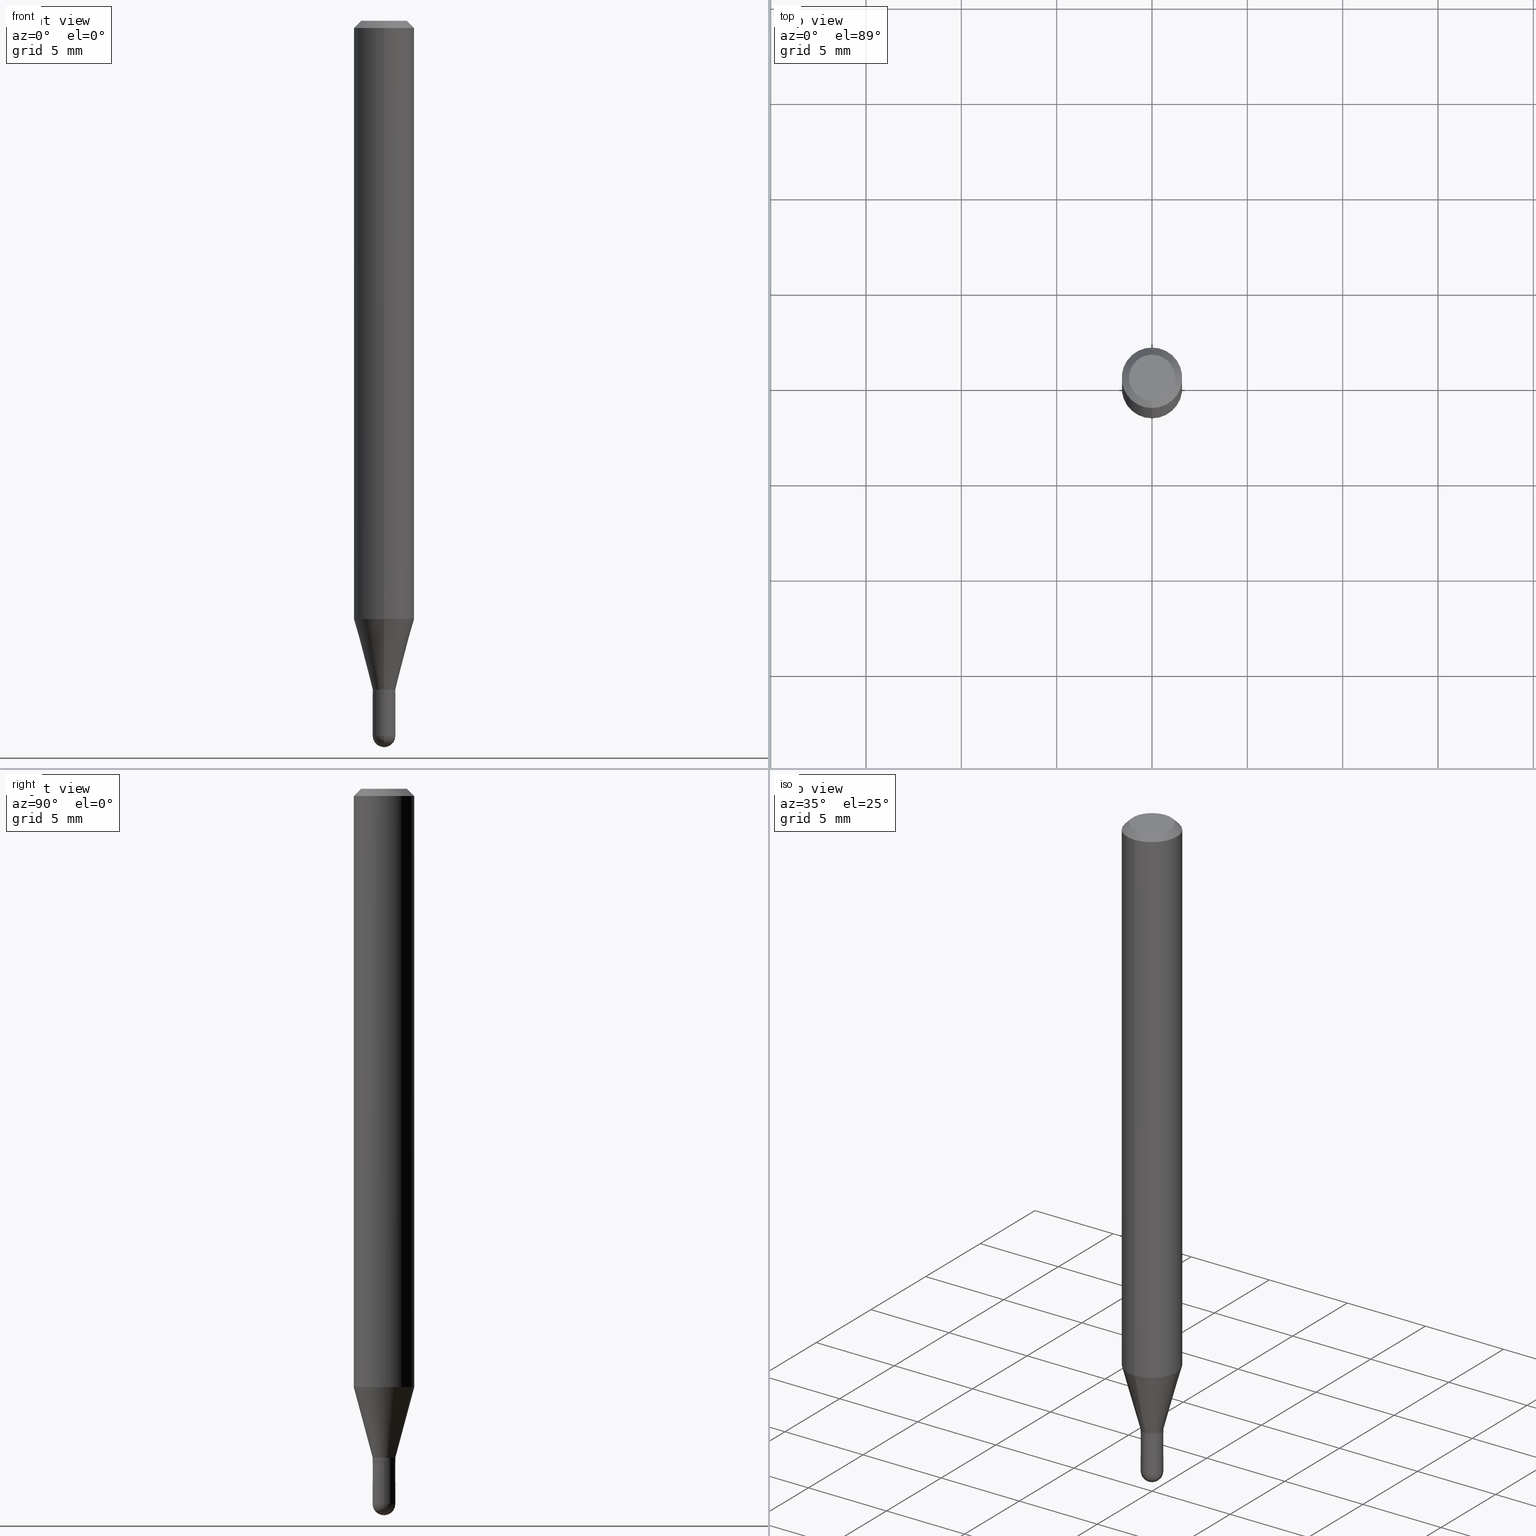
[diagram: canonical four-view strip — front | top / right | iso, engineering-drawing reading convention]
A machine part, canonical four-view strip (front | top / right | iso — engineering-drawing reading convention). The complete STEP part file that produces these views, byte-faithful:
ISO-10303-21;
HEADER;
FILE_DESCRIPTION (( 'STEP AP203' ),
    '1' );
FILE_NAME ('39106.STEP',
    '2024-03-08T12:44:34',
    ( '' ),
    ( '' ),
    'SwSTEP 2.0',
    'SolidWorks 2023',
    '' );
FILE_SCHEMA (( 'CONFIG_CONTROL_DESIGN' ));
ENDSEC;

DATA;
#1 = CALENDAR_DATE ( 2024, 8, 3 ) ;
#2 = CARTESIAN_POINT ( 'NONE',  ( 1.666222715357429168E-16, 0.02344999999999992230, -8.187880512536303078E-17 ) ) ;
#3 = ORIENTED_EDGE ( 'NONE', *, *, #386, .F. ) ;
#4 = APPROVAL_DATE_TIME ( #46, #284 ) ;
#5 = FACE_OUTER_BOUND ( 'NONE', #316, .T. ) ;
#6 = VECTOR ( 'NONE', #283, 39.37007874015748143 ) ;
#7 = VERTEX_POINT ( 'NONE', #106 ) ;
#8 = CARTESIAN_POINT ( 'NONE',  ( 0.000000000000000000, 0.000000000000000000, 0.000000000000000000 ) ) ;
#9 = APPROVAL_PERSON_ORGANIZATION ( #126, #284, #84 ) ;
#10 = DIRECTION ( 'NONE',  ( -2.445362566006528973E-29, 3.491633480825727200E-15, 1.000000000000000000 ) ) ;
#11 = ORIENTED_EDGE ( 'NONE', *, *, #130, .T. ) ;
#12 = DIRECTION ( 'NONE',  ( -2.445362566006528973E-29, 3.491633480825727200E-15, 1.000000000000000000 ) ) ;
#13 = ORIENTED_EDGE ( 'NONE', *, *, #465, .T. ) ;
#14 = CARTESIAN_POINT ( 'NONE',  ( 1.637504747917769708E-16, 0.02344999999999514140, -1.391000000000000014 ) ) ;
#15 = ORIENTED_EDGE ( 'NONE', *, *, #275, .T. ) ;
#16 = MANIFOLD_SOLID_BREP ( 'Body-Move/Copy2[2]', #214 ) ;
#17 = VECTOR ( 'NONE', #174, 39.37007874015748143 ) ;
#18 = CIRCLE ( 'NONE', #77, 0.02345000000000000556 ) ;
#19 = EDGE_CURVE ( 'NONE', #407, #251, #450, .T. ) ;
#20 = DIRECTION ( 'NONE',  ( -2.445468806185136597E-29, 3.491481338843145583E-15, 1.000000000000000000 ) ) ;
#21 = ORIENTED_EDGE ( 'NONE', *, *, #206, .F. ) ;
#22 = DIRECTION ( 'NONE',  ( -2.445362566006528973E-29, 3.491633480825727200E-15, 1.000000000000000000 ) ) ;
#23 = FACE_OUTER_BOUND ( 'NONE', #376, .T. ) ;
#24 = DIRECTION ( 'NONE',  ( -6.982962677686265922E-15, -1.000000000000000000, 0.000000000000000000 ) ) ;
#25 = CONICAL_SURFACE ( 'NONE', #421, 0.02345000000000019638, 0.2617993877991502960 ) ;
#26 = FACE_OUTER_BOUND ( 'NONE', #218, .T. ) ;
#27 = AXIS2_PLACEMENT_3D ( 'NONE', #229, #226, #380 ) ;
#28 = DIRECTION ( 'NONE',  ( -2.445468806185136597E-29, 3.491481338843145583E-15, 1.000000000000000000 ) ) ;
#29 = ORIENTED_EDGE ( 'NONE', *, *, #328, .F. ) ;
#30 = DIRECTION ( 'NONE',  ( 1.000000000000000000, -6.982962677686254089E-15, 0.000000000000000000 ) ) ;
#31 = ORIENTED_EDGE ( 'NONE', *, *, #354, .F. ) ;
#32 = ORIENTED_EDGE ( 'NONE', *, *, #328, .T. ) ;
#33 = AXIS2_PLACEMENT_3D ( 'NONE', #58, #333, #185 ) ;
#34 = DIRECTION ( 'NONE',  ( -2.445362566006528973E-29, 3.491633480825727200E-15, 1.000000000000000000 ) ) ;
#35 = VERTEX_POINT ( 'NONE', #408 ) ;
#36 = PERSON_AND_ORGANIZATION ( #353, #279 ) ;
#37 = ADVANCED_FACE ( 'NONE', ( #103 ), #48, .T. ) ;
#38 = DATE_TIME_ROLE ( 'classification_date' ) ;
#39 = CARTESIAN_POINT ( 'NONE',  ( 0.000000000000000000, 0.000000000000000000, 0.000000000000000000 ) ) ;
#40 = AXIS2_PLACEMENT_3D ( 'NONE', #63, #66, #264 ) ;
#41 = ADVANCED_FACE ( 'NONE', ( #65 ), #25, .T. ) ;
#42 = LINE ( 'NONE', #431, #256 ) ;
#43 = CALENDAR_DATE ( 2024, 8, 3 ) ;
#44 = DIRECTION ( 'NONE',  ( 2.445362566006528693E-29, -3.491633480825727200E-15, -1.000000000000000000 ) ) ;
#45 = ORIENTED_EDGE ( 'NONE', *, *, #499, .F. ) ;
#46 = DATE_AND_TIME ( #43, #225 ) ;
#47 = CARTESIAN_POINT ( 'NONE',  ( 0.000000000000000000, 0.000000000000000000, 0.000000000000000000 ) ) ;
#48 = CONICAL_SURFACE ( 'NONE', #246, 0.06250000000000001388, 0.7853981633974473908 ) ;
#49 = AXIS2_PLACEMENT_3D ( 'NONE', #323, #454, #219 ) ;
#50 = EDGE_LOOP ( 'NONE', ( #136, #280 ) ) ;
#51 = APPROVAL_PERSON_ORGANIZATION ( #243, #476, #399 ) ;
#52 = CARTESIAN_POINT ( 'NONE',  ( 1.648459146963756983E-16, 0.02294999999999514095, -1.391000000000000236 ) ) ;
#53 = EDGE_CURVE ( 'NONE', #369, #436, #452, .T. ) ;
#54 = ORIENTED_EDGE ( 'NONE', *, *, #372, .F. ) ;
#55 = DIRECTION ( 'NONE',  ( -1.000000000000000000, 6.982962677686265922E-15, -4.876176775795935793E-29 ) ) ;
#56 = ADVANCED_FACE ( 'NONE', ( #113 ), #164, .T. ) ;
#57 = ORIENTED_EDGE ( 'NONE', *, *, #372, .T. ) ;
#58 = CARTESIAN_POINT ( 'NONE',  ( 3.401499329315081448E-29, -4.856862171828586878E-15, -1.391000000000000014 ) ) ;
#59 = VERTEX_POINT ( 'NONE', #217 ) ;
#60 = DIRECTION ( 'NONE',  ( -6.982962677686265922E-15, -1.000000000000000000, 0.000000000000000000 ) ) ;
#61 = AXIS2_PLACEMENT_3D ( 'NONE', #210, #286, #356 ) ;
#62 = AXIS2_PLACEMENT_3D ( 'NONE', #117, #455, #72 ) ;
#63 = CARTESIAN_POINT ( 'NONE',  ( 3.020666916556785536E-29, -4.313087100820585509E-15, -1.235263415964436895 ) ) ;
#64 = VERTEX_POINT ( 'NONE', #400 ) ;
#65 = FACE_OUTER_BOUND ( 'NONE', #489, .T. ) ;
#66 = DIRECTION ( 'NONE',  ( -2.445362566006528973E-29, 3.491633480825727200E-15, 1.000000000000000000 ) ) ;
#67 = EDGE_CURVE ( 'NONE', #120, #429, #170, .T. ) ;
#68 = CARTESIAN_POINT ( 'NONE',  ( 0.000000000000000000, 0.000000000000000000, 0.000000000000000000 ) ) ;
#69 = EDGE_CURVE ( 'NONE', #7, #211, #236, .T. ) ;
#70 = DIRECTION ( 'NONE',  ( 1.000000000000000000, -6.982962677686254089E-15, 0.000000000000000000 ) ) ;
#71 = AXIS2_PLACEMENT_3D ( 'NONE', #267, #188, #419 ) ;
#72 = DIRECTION ( 'NONE',  ( -6.982962677686265922E-15, -1.000000000000000000, 0.000000000000000000 ) ) ;
#73 = EDGE_CURVE ( 'NONE', #436, #407, #440, .T. ) ;
#74 = CARTESIAN_POINT ( 'NONE',  ( 4.440892098500924943E-16, 0.06249999999999566319, -1.235263415964437339 ) ) ;
#75 = DIRECTION ( 'NONE',  ( -4.937700262161976356E-15, -0.7071067811861768693, 0.7071067811869181652 ) ) ;
#76 = EDGE_LOOP ( 'NONE', ( #153, #167, #216, #99, #172 ) ) ;
#77 = AXIS2_PLACEMENT_3D ( 'NONE', #385, #28, #70 ) ;
#78 = CC_DESIGN_APPROVAL ( #382, ( #304 ) ) ;
#79 = DIRECTION ( 'NONE',  ( -2.445362566006528973E-29, 3.491633480825727200E-15, 1.000000000000000000 ) ) ;
#80 = ORIENTED_EDGE ( 'NONE', *, *, #291, .F. ) ;
#81 = PERSON_AND_ORGANIZATION ( #353, #279 ) ;
#82 = LINE ( 'NONE', #473, #486 ) ;
#83 = PRODUCT_RELATED_PRODUCT_CATEGORY ( 'detail', '', ( #260 ) ) ;
#84 = APPROVAL_ROLE ( '' ) ;
#85 = DIRECTION ( 'NONE',  ( -2.445362566006528973E-29, 3.491633480825727200E-15, 1.000000000000000000 ) ) ;
#86 = AXIS2_PLACEMENT_3D ( 'NONE', #308, #79, #269 ) ;
#87 = DIRECTION ( 'NONE',  ( 0.000000000000000000, 0.000000000000000000, 1.000000000000000000 ) ) ;
#88 = CARTESIAN_POINT ( 'NONE',  ( 3.316907271900979054E-16, 0.04750000000000004219, -3.448923390024789188E-16 ) ) ;
#89 = VERTEX_POINT ( 'NONE', #331 ) ;
#90 = APPROVAL_ROLE ( '' ) ;
#91 = DIRECTION ( 'NONE',  ( -2.445468806185136597E-29, 3.491481338843145583E-15, 1.000000000000000000 ) ) ;
#92 = COORDINATED_UNIVERSAL_TIME_OFFSET ( 5, 0, .BEHIND. ) ;
#93 = EDGE_CURVE ( 'NONE', #59, #379, #254, .T. ) ;
#94 = DIRECTION ( 'NONE',  ( -4.851104656540959542E-15, -0.7071067811865493491, -0.7071067811865456854 ) ) ;
#95 = VECTOR ( 'NONE', #75, 39.37007874015748143 ) ;
#96 = EDGE_LOOP ( 'NONE', ( #133, #459, #258, #123 ) ) ;
#97 = APPROVAL_PERSON_ORGANIZATION ( #124, #382, #90 ) ;
#98 = CYLINDRICAL_SURFACE ( 'NONE', #487, 0.02344999999999992230 ) ;
#99 = ORIENTED_EDGE ( 'NONE', *, *, #130, .F. ) ;
#100 = DIRECTION ( 'NONE',  ( -2.445362566006528973E-29, 3.491633480825727200E-15, 1.000000000000000000 ) ) ;
#101 = DIRECTION ( 'NONE',  ( 1.000000000000000000, -6.982962677686266711E-15, 4.876176775795936353E-29 ) ) ;
#102 = VERTEX_POINT ( 'NONE', #394 ) ;
#103 = FACE_OUTER_BOUND ( 'NONE', #493, .T. ) ;
#104 = FACE_OUTER_BOUND ( 'NONE', #227, .T. ) ;
#105 = ORIENTED_EDGE ( 'NONE', *, *, #146, .T. ) ;
#106 = CARTESIAN_POINT ( 'NONE',  ( 1.666222715357800672E-16, 0.02344999999999491241, -1.476549999999999807 ) ) ;
#107 = CLOSED_SHELL ( 'NONE', ( #233, #448, #305, #492, #189 ) ) ;
#108 = AXIS2_PLACEMENT_3D ( 'NONE', #235, #199, #388 ) ;
#109 = CARTESIAN_POINT ( 'NONE',  ( -1.637504747917105586E-16, -0.02345000000000501891, -1.381000000000000449 ) ) ;
#110 = CARTESIAN_POINT ( 'NONE',  ( 3.401499329315082009E-29, -4.856862171828588456E-15, -1.391000000000000236 ) ) ;
#111 = APPLICATION_CONTEXT ( 'configuration controlled 3d designs of mechanical parts and assemblies' ) ;
#112 = DIRECTION ( 'NONE',  ( -6.982962677686265922E-15, -1.000000000000000000, 0.000000000000000000 ) ) ;
#113 = FACE_OUTER_BOUND ( 'NONE', #186, .T. ) ;
#114 = DIRECTION ( 'NONE',  ( -6.982962677686265133E-15, -1.000000000000000000, 3.491633480825726805E-15 ) ) ;
#115 = CIRCLE ( 'NONE', #231, 0.02344999999999999862 ) ;
#116 = EDGE_CURVE ( 'NONE', #120, #296, #403, .T. ) ;
#117 = CARTESIAN_POINT ( 'NONE',  ( 3.377045703655016887E-29, -4.821945837020329725E-15, -1.381000000000000449 ) ) ;
#118 = ORIENTED_EDGE ( 'NONE', *, *, #270, .F. ) ;
#119 =( NAMED_UNIT ( * ) PLANE_ANGLE_UNIT ( ) SI_UNIT ( $, .RADIAN. ) );
#120 = VERTEX_POINT ( 'NONE', #52 ) ;
#121 = EDGE_CURVE ( 'NONE', #441, #379, #82, .T. ) ;
#122 = VECTOR ( 'NONE', #373, 39.37007874015748143 ) ;
#123 = ORIENTED_EDGE ( 'NONE', *, *, #507, .F. ) ;
#124 = PERSON_AND_ORGANIZATION ( #353, #279 ) ;
#125 = CARTESIAN_POINT ( 'NONE',  ( -1.637504747917070334E-16, -0.02345000000000458523, -1.390500000000000069 ) ) ;
#126 = PERSON_AND_ORGANIZATION ( #353, #279 ) ;
#127 = LINE ( 'NONE', #364, #6 ) ;
#128 = PERSON_AND_ORGANIZATION ( #353, #279 ) ;
#129 = CARTESIAN_POINT ( 'NONE',  ( -0.02344999999999999862, -4.839376385064087079E-15, -1.391000000000000014 ) ) ;
#130 = EDGE_CURVE ( 'NONE', #277, #35, #127, .T. ) ;
#131 = PERSON_AND_ORGANIZATION_ROLE ( 'design_owner' ) ;
#132 = DIRECTION ( 'NONE',  ( -2.445362566006528973E-29, 3.491633480825727200E-15, 1.000000000000000000 ) ) ;
#133 = ORIENTED_EDGE ( 'NONE', *, *, #53, .T. ) ;
#134 = DATE_AND_TIME ( #285, #470 ) ;
#135 = CYLINDRICAL_SURFACE ( 'NONE', #271, 0.06250000000000001388 ) ;
#136 = ORIENTED_EDGE ( 'NONE', *, *, #456, .T. ) ;
#137 = CARTESIAN_POINT ( 'NONE',  ( 4.364351673553921131E-16, 0.06249999999999996531, -0.01500000000000057711 ) ) ;
#138 = VECTOR ( 'NONE', #491, 39.37007874015748143 ) ;
#139 = VERTEX_POINT ( 'NONE', #129 ) ;
#140 = DIRECTION ( 'NONE',  ( 6.982962677686265922E-15, 1.000000000000000000, -3.483106191921934765E-15 ) ) ;
#141 = DIRECTION ( 'NONE',  ( 2.445362566006528973E-29, -3.491633480825727200E-15, -1.000000000000000000 ) ) ;
#142 = ADVANCED_FACE ( 'NONE', ( #5 ), #250, .F. ) ;
#143 = CARTESIAN_POINT ( 'NONE',  ( 4.440892098500930859E-16, 0.06249999999999996531, -0.01500000000000057711 ) ) ;
#144 = ORIENTED_EDGE ( 'NONE', *, *, #159, .F. ) ;
#145 = DIRECTION ( 'NONE',  ( -2.445468806185136597E-29, 3.491481338843145583E-15, 1.000000000000000000 ) ) ;
#146 = EDGE_CURVE ( 'NONE', #296, #178, #363, .T. ) ;
#147 = AXIS2_PLACEMENT_3D ( 'NONE', #326, #398, #208 ) ;
#148 = AXIS2_PLACEMENT_3D ( 'NONE', #193, #428, #112 ) ;
#149 = CARTESIAN_POINT ( 'NONE',  ( 1.666222715357744219E-16, 0.02344999999999471466, -1.390500000000000069 ) ) ;
#150 =( NAMED_UNIT ( * ) SI_UNIT ( $, .STERADIAN. ) SOLID_ANGLE_UNIT ( ) );
#151 = CARTESIAN_POINT ( 'NONE',  ( 3.020666916556785536E-29, -4.313087100820585509E-15, -1.235263415964436895 ) ) ;
#152 = EDGE_LOOP ( 'NONE', ( #144, #329, #3, #318 ) ) ;
#153 = ORIENTED_EDGE ( 'NONE', *, *, #69, .T. ) ;
#154 = CARTESIAN_POINT ( 'NONE',  ( -4.364351673553615941E-16, -0.06250000000000432987, -1.235263415964436673 ) ) ;
#155 = CIRCLE ( 'NONE', #223, 0.02345000000000000556 ) ;
#156 = ADVANCED_FACE ( 'NONE', ( #368 ), #135, .T. ) ;
#157 = ORIENTED_EDGE ( 'NONE', *, *, #73, .F. ) ;
#158 = ORIENTED_EDGE ( 'NONE', *, *, #366, .F. ) ;
#159 = EDGE_CURVE ( 'NONE', #89, #7, #468, .T. ) ;
#160 = ORIENTED_EDGE ( 'NONE', *, *, #458, .T. ) ;
#161 = EDGE_CURVE ( 'NONE', #211, #139, #42, .T. ) ;
#162 = DATE_AND_TIME ( #438, #295 ) ;
#163 = CIRCLE ( 'NONE', #40, 0.06250000000000000000 ) ;
#164 = CYLINDRICAL_SURFACE ( 'NONE', #222, 0.02344999999999992230 ) ;
#165 = PERSON_AND_ORGANIZATION_ROLE ( 'classification_officer' ) ;
#166 = DIRECTION ( 'NONE',  ( -2.445362566006528973E-29, 3.491633480825727200E-15, 1.000000000000000000 ) ) ;
#167 = ORIENTED_EDGE ( 'NONE', *, *, #161, .T. ) ;
#168 = APPROVAL_STATUS ( 'not_yet_approved' ) ;
#169 = DIRECTION ( 'NONE',  ( -6.982962677686265133E-15, -1.000000000000000000, 0.000000000000000000 ) ) ;
#170 = CIRCLE ( 'NONE', #61, 0.02294999999999999818 ) ;
#171 = CC_DESIGN_APPROVAL ( #284, ( #240 ) ) ;
#172 = ORIENTED_EDGE ( 'NONE', *, *, #499, .T. ) ;
#173 = APPROVAL_STATUS ( 'not_yet_approved' ) ;
#174 = DIRECTION ( 'NONE',  ( 1.839019923739600710E-15, 0.2588190451025250138, 0.9659258262890670910 ) ) ;
#175 = ADVANCED_FACE ( 'NONE', ( #475 ), #347, .T. ) ;
#176 = ORIENTED_EDGE ( 'NONE', *, *, #433, .T. ) ;
#177 = DIRECTION ( 'NONE',  ( 6.982962677686265922E-15, 1.000000000000000000, -3.491633480825727200E-15 ) ) ;
#178 = VERTEX_POINT ( 'NONE', #125 ) ;
#179 = DIRECTION ( 'NONE',  ( 2.445362566006528973E-29, -3.491633480825727200E-15, -1.000000000000000000 ) ) ;
#180 = CC_DESIGN_PERSON_AND_ORGANIZATION_ASSIGNMENT ( #81, #203, ( #240 ) ) ;
#181 = FACE_OUTER_BOUND ( 'NONE', #50, .T. ) ;
#182 = PRODUCT_DEFINITION_SHAPE ( 'NONE', 'NONE',  #255 ) ;
#183 = AXIS2_PLACEMENT_3D ( 'NONE', #244, #471, #357 ) ;
#184 = AXIS2_PLACEMENT_3D ( 'NONE', #110, #299, #24 ) ;
#185 = DIRECTION ( 'NONE',  ( -6.982962677686265922E-15, -1.000000000000000000, 3.491633480825727200E-15 ) ) ;
#186 = EDGE_LOOP ( 'NONE', ( #445, #105, #464, #443 ) ) ;
#187 = PLANE ( 'NONE',  #33 ) ;
#188 = DIRECTION ( 'NONE',  ( -1.000000000000000000, 6.982962677686265922E-15, -4.883557194083112340E-29 ) ) ;
#189 = ADVANCED_FACE ( 'NONE', ( #252 ), #213, .T. ) ;
#190 = AXIS2_PLACEMENT_3D ( 'NONE', #435, #360, #169 ) ;
#191 = AXIS2_PLACEMENT_3D ( 'NONE', #14, #261, #55 ) ;
#192 = EDGE_CURVE ( 'NONE', #296, #436, #282, .T. ) ;
#193 = CARTESIAN_POINT ( 'NONE',  ( 3.401499329315082009E-29, -4.856862171828588456E-15, -1.391000000000000236 ) ) ;
#194 = EDGE_LOOP ( 'NONE', ( #508, #462, #80, #273 ) ) ;
#195 = CC_DESIGN_PERSON_AND_ORGANIZATION_ASSIGNMENT ( #36, #165, ( #304 ) ) ;
#196 = LINE ( 'NONE', #313, #469 ) ;
#197 = DIRECTION ( 'NONE',  ( -6.982962677686265922E-15, -1.000000000000000000, 0.000000000000000000 ) ) ;
#198 = LOCAL_TIME ( 7, 44, 34.00000000000000000, #362 ) ;
#199 = DIRECTION ( 'NONE',  ( -2.445362566006528973E-29, 3.491633480825727200E-15, 1.000000000000000000 ) ) ;
#200 = ORIENTED_EDGE ( 'NONE', *, *, #507, .T. ) ;
#201 = ADVANCED_BREP_SHAPE_REPRESENTATION ( '39106', ( #358, #16, #287 ), #415 ) ;
#202 = SHAPE_DEFINITION_REPRESENTATION ( #182, #201 ) ;
#203 = PERSON_AND_ORGANIZATION_ROLE ( 'design_supplier' ) ;
#204 = DIRECTION ( 'NONE',  ( -6.982962677686266711E-15, -1.000000000000000000, 3.491633480825727200E-15 ) ) ;
#205 = CIRCLE ( 'NONE', #49, 0.06250000000000001388 ) ;
#206 = EDGE_CURVE ( 'NONE', #251, #379, #205, .T. ) ;
#207 = MECHANICAL_CONTEXT ( 'NONE', #111, 'mechanical' ) ;
#208 = DIRECTION ( 'NONE',  ( 7.105427357601001070E-15, 1.000000000000000000, 0.000000000000000000 ) ) ;
#209 = APPLICATION_PROTOCOL_DEFINITION ( 'international standard', 'config_control_design', 1994, #111 ) ;
#210 = CARTESIAN_POINT ( 'NONE',  ( 3.401499329315082009E-29, -4.856862171828588456E-15, -1.391000000000000236 ) ) ;
#211 = VERTEX_POINT ( 'NONE', #442 ) ;
#212 = DIRECTION ( 'NONE',  ( 1.000000000000000000, 0.000000000000000000, 0.000000000000000000 ) ) ;
#213 = CYLINDRICAL_SURFACE ( 'NONE', #183, 0.02344999999999999862 ) ;
#214 = CLOSED_SHELL ( 'NONE', ( #239, #175, #37, #156, #417, #41, #215, #343, #142, #352, #392, #56 ) ) ;
#215 = ADVANCED_FACE ( 'NONE', ( #104 ), #341, .T. ) ;
#216 = ORIENTED_EDGE ( 'NONE', *, *, #456, .F. ) ;
#217 = CARTESIAN_POINT ( 'NONE',  ( -3.773273898774342241E-16, -0.04750000000000004219, -1.922269069872913270E-16 ) ) ;
#218 = EDGE_LOOP ( 'NONE', ( #361, #483 ) ) ;
#219 = DIRECTION ( 'NONE',  ( -6.982962677686265922E-15, -1.000000000000000000, 3.483106191921934765E-15 ) ) ;
#220 = ORIENTED_EDGE ( 'NONE', *, *, #291, .T. ) ;
#221 = LINE ( 'NONE', #137, #122 ) ;
#222 = AXIS2_PLACEMENT_3D ( 'NONE', #39, #12, #204 ) ;
#223 = AXIS2_PLACEMENT_3D ( 'NONE', #350, #503, #30 ) ;
#224 = ORIENTED_EDGE ( 'NONE', *, *, #354, .T. ) ;
#225 = LOCAL_TIME ( 7, 44, 34.00000000000000000, #253 ) ;
#226 = DIRECTION ( 'NONE',  ( -2.445362566006528973E-29, 3.491633480825727200E-15, 1.000000000000000000 ) ) ;
#227 = EDGE_LOOP ( 'NONE', ( #332, #367, #351, #21 ) ) ;
#228 = DIRECTION ( 'NONE',  ( -6.982962677686265922E-15, -1.000000000000000000, 0.000000000000000000 ) ) ;
#229 = CARTESIAN_POINT ( 'NONE',  ( 0.000000000000000000, 0.000000000000000000, 0.000000000000000000 ) ) ;
#230 = CARTESIAN_POINT ( 'NONE',  ( 3.400276648032079005E-29, -4.855116355088173902E-15, -1.390500000000000069 ) ) ;
#231 = AXIS2_PLACEMENT_3D ( 'NONE', #292, #20, #338 ) ;
#232 = DIRECTION ( 'NONE',  ( 1.000000000000000000, -6.982962677686265922E-15, 4.883557194083112901E-29 ) ) ;
#233 = ADVANCED_FACE ( 'NONE', ( #411 ), #447, .T. ) ;
#234 = CARTESIAN_POINT ( 'NONE',  ( 8.756341984166910779E-45, -1.250282361662500984E-30, -3.580794973265134972E-16 ) ) ;
#235 = CARTESIAN_POINT ( 'NONE',  ( 3.668043849009881216E-31, -5.237450221238716032E-17, -0.01500000000000035853 ) ) ;
#236 = CIRCLE ( 'NONE', #497, 0.02345000000000000556 ) ;
#237 =( LENGTH_UNIT ( ) NAMED_UNIT ( * ) SI_UNIT ( $, .METRE. ) );
#238 = AXIS2_PLACEMENT_3D ( 'NONE', #387, #463, #197 ) ;
#239 = ADVANCED_FACE ( 'NONE', ( #259 ), #98, .T. ) ;
#240 = PRODUCT_DEFINITION_FORMATION_WITH_SPECIFIED_SOURCE ( 'ANY', '', #260, .NOT_KNOWN. ) ;
#241 = EDGE_LOOP ( 'NONE', ( #15, #477, #262, #502 ) ) ;
#242 = DIRECTION ( 'NONE',  ( -2.445362566006528973E-29, 3.491633480825727200E-15, 1.000000000000000000 ) ) ;
#243 = PERSON_AND_ORGANIZATION ( #353, #279 ) ;
#244 = CARTESIAN_POINT ( 'NONE',  ( 0.000000000000000000, 0.000000000000000000, 0.000000000000000000 ) ) ;
#245 = SECURITY_CLASSIFICATION_LEVEL ( 'unclassified' ) ;
#246 = AXIS2_PLACEMENT_3D ( 'NONE', #263, #179, #140 ) ;
#247 = DIRECTION ( 'NONE',  ( -6.982962677686265133E-15, -1.000000000000000000, 3.491633480825726805E-15 ) ) ;
#248 = CIRCLE ( 'NONE', #511, 0.02345000000000000556 ) ;
#249 = CC_DESIGN_PERSON_AND_ORGANIZATION_ASSIGNMENT ( #474, #402, ( #255 ) ) ;
#250 = PLANE ( 'NONE',  #302 ) ;
#251 = VERTEX_POINT ( 'NONE', #143 ) ;
#252 = FACE_OUTER_BOUND ( 'NONE', #426, .T. ) ;
#253 = COORDINATED_UNIVERSAL_TIME_OFFSET ( 5, 0, .BEHIND. ) ;
#254 = LINE ( 'NONE', #512, #319 ) ;
#255 = PRODUCT_DEFINITION ( 'UNKNOWN', '', #240, #339 ) ;
#256 = VECTOR ( 'NONE', #290, 39.37007874015748143 ) ;
#257 = CC_DESIGN_APPROVAL ( #476, ( #255 ) ) ;
#258 = ORIENTED_EDGE ( 'NONE', *, *, #275, .F. ) ;
#259 = FACE_OUTER_BOUND ( 'NONE', #371, .T. ) ;
#260 = PRODUCT ( '39106', '39106', '', ( #207 ) ) ;
#261 = DIRECTION ( 'NONE',  ( 2.438088387897960049E-29, -3.491481338843145188E-15, -1.000000000000000000 ) ) ;
#262 = ORIENTED_EDGE ( 'NONE', *, *, #465, .F. ) ;
#263 = CARTESIAN_POINT ( 'NONE',  ( 3.668043849009881216E-31, -5.237450221238716032E-17, -0.01500000000000035853 ) ) ;
#264 = DIRECTION ( 'NONE',  ( -6.982962677686265922E-15, -1.000000000000000000, 4.370956789862821150E-15 ) ) ;
#265 = ORIENTED_EDGE ( 'NONE', *, *, #53, .F. ) ;
#266 = CARTESIAN_POINT ( 'NONE',  ( 8.756341984166910779E-45, -1.250282361662500984E-30, -3.580794973265134972E-16 ) ) ;
#267 = CARTESIAN_POINT ( 'NONE',  ( 3.608851600824538277E-29, -5.158218567612847628E-15, -1.476550000000000029 ) ) ;
#268 = EDGE_CURVE ( 'NONE', #429, #120, #278, .T. ) ;
#269 = DIRECTION ( 'NONE',  ( -6.982962677686265922E-15, -1.000000000000000000, 0.000000000000000000 ) ) ;
#270 = EDGE_CURVE ( 'NONE', #89, #102, #272, .T. ) ;
#271 = AXIS2_PLACEMENT_3D ( 'NONE', #47, #85, #247 ) ;
#272 = CIRCLE ( 'NONE', #71, 0.02345000000000013740 ) ;
#273 = ORIENTED_EDGE ( 'NONE', *, *, #433, .F. ) ;
#274 = FACE_OUTER_BOUND ( 'NONE', #96, .T. ) ;
#275 = EDGE_CURVE ( 'NONE', #441, #407, #163, .T. ) ;
#276 = DIRECTION ( 'NONE',  ( 1.000000000000000000, -6.982962677686256455E-15, 0.000000000000000000 ) ) ;
#277 = VERTEX_POINT ( 'NONE', #340 ) ;
#278 = CIRCLE ( 'NONE', #184, 0.02294999999999999818 ) ;
#279 = ORGANIZATION ( 'UNSPECIFIED', 'UNSPECIFIED', '' ) ;
#280 = ORIENTED_EDGE ( 'NONE', *, *, #366, .T. ) ;
#281 = DIMENSIONAL_EXPONENTS ( 1.000000000000000000, 0.000000000000000000, 0.000000000000000000, 0.000000000000000000, 0.000000000000000000, 0.000000000000000000, 0.000000000000000000 ) ;
#282 = LINE ( 'NONE', #2, #311 ) ;
#283 = DIRECTION ( 'NONE',  ( -2.445468806185136877E-29, 3.491481338843145188E-15, 1.000000000000000000 ) ) ;
#284 = APPROVAL ( #289, 'UNSPECIFIED' ) ;
#285 = CALENDAR_DATE ( 2024, 8, 3 ) ;
#286 = DIRECTION ( 'NONE',  ( -2.445362566006528973E-29, 3.491633480825727200E-15, 1.000000000000000000 ) ) ;
#287 = AXIS2_PLACEMENT_3D ( 'NONE', #8, #87, #212 ) ;
#288 = DIRECTION ( 'NONE',  ( -6.982962677686265922E-15, -1.000000000000000000, 0.000000000000000000 ) ) ;
#289 = APPROVAL_STATUS ( 'not_yet_approved' ) ;
#290 = DIRECTION ( 'NONE',  ( -2.445468806185136877E-29, 3.491481338843145188E-15, 1.000000000000000000 ) ) ;
#291 = EDGE_CURVE ( 'NONE', #178, #296, #342, .T. ) ;
#292 = CARTESIAN_POINT ( 'NONE',  ( 3.401647109403525181E-29, -4.856650542330816199E-15, -1.391000000000000014 ) ) ;
#293 = VECTOR ( 'NONE', #405, 39.37007874015748143 ) ;
#294 = AXIS2_PLACEMENT_3D ( 'NONE', #234, #34, #114 ) ;
#295 = LOCAL_TIME ( 7, 44, 34.00000000000000000, #434 ) ;
#296 = VERTEX_POINT ( 'NONE', #149 ) ;
#297 = DIRECTION ( 'NONE',  ( 6.982962677686265922E-15, 1.000000000000000000, -3.483106191921934765E-15 ) ) ;
#298 = ORIENTED_EDGE ( 'NONE', *, *, #116, .F. ) ;
#299 = DIRECTION ( 'NONE',  ( -2.445362566006528973E-29, 3.491633480825727200E-15, 1.000000000000000000 ) ) ;
#300 = ORIENTED_EDGE ( 'NONE', *, *, #439, .F. ) ;
#301 = DIRECTION ( 'NONE',  ( 1.000000000000000000, -6.982962677686254089E-15, 0.000000000000000000 ) ) ;
#302 = AXIS2_PLACEMENT_3D ( 'NONE', #88, #44, #177 ) ;
#303 = AXIS2_PLACEMENT_3D ( 'NONE', #488, #141, #297 ) ;
#304 = SECURITY_CLASSIFICATION ( '', '', #245 ) ;
#305 = ADVANCED_FACE ( 'NONE', ( #181 ), #484, .F. ) ;
#306 = DIRECTION ( 'NONE',  ( -2.445468806185136597E-29, 3.491481338843145583E-15, 1.000000000000000000 ) ) ;
#307 = CC_DESIGN_PERSON_AND_ORGANIZATION_ASSIGNMENT ( #128, #481, ( #240 ) ) ;
#308 = CARTESIAN_POINT ( 'NONE',  ( 3.377045703655016887E-29, -4.821945837020329725E-15, -1.381000000000000449 ) ) ;
#309 = FACE_OUTER_BOUND ( 'NONE', #416, .T. ) ;
#310 = ORIENTED_EDGE ( 'NONE', *, *, #386, .T. ) ;
#311 = VECTOR ( 'NONE', #166, 39.37007874015748143 ) ;
#312 = CIRCLE ( 'NONE', #294, 0.04750000000000004219 ) ;
#313 = CARTESIAN_POINT ( 'NONE',  ( -1.637504747917105586E-16, -0.02345000000000501891, -1.381000000000000449 ) ) ;
#314 = ORIENTED_EDGE ( 'NONE', *, *, #146, .F. ) ;
#315 = EDGE_CURVE ( 'NONE', #178, #369, #381, .T. ) ;
#316 = EDGE_LOOP ( 'NONE', ( #32, #160 ) ) ;
#317 = CARTESIAN_POINT ( 'NONE',  ( 3.608851600824538277E-29, -5.158218567612847628E-15, -1.476550000000000029 ) ) ;
#318 = ORIENTED_EDGE ( 'NONE', *, *, #69, .F. ) ;
#319 = VECTOR ( 'NONE', #94, 39.37007874015748143 ) ;
#320 = AXIS2_PLACEMENT_3D ( 'NONE', #444, #306, #101 ) ;
#321 = COORDINATED_UNIVERSAL_TIME_OFFSET ( 5, 0, .BEHIND. ) ;
#322 = CARTESIAN_POINT ( 'NONE',  ( 1.630695578569769747E-16, 0.02294999999999514095, -1.391000000000000236 ) ) ;
#323 = CARTESIAN_POINT ( 'NONE',  ( 3.668043849009881216E-31, -5.237450221238716032E-17, -0.01500000000000035853 ) ) ;
#324 = ORIENTED_EDGE ( 'NONE', *, *, #206, .T. ) ;
#325 = DATE_AND_TIME ( #359, #198 ) ;
#326 = CARTESIAN_POINT ( 'NONE',  ( 3.608851600824538277E-29, -5.158218567612847628E-15, -1.476550000000000029 ) ) ;
#327 = CIRCLE ( 'NONE', #62, 0.02345000000000019638 ) ;
#328 = EDGE_CURVE ( 'NONE', #64, #59, #453, .T. ) ;
#329 = ORIENTED_EDGE ( 'NONE', *, *, #270, .T. ) ;
#330 = APPLICATION_PROTOCOL_DEFINITION ( 'international standard', 'config_control_design', 1994, #446 ) ;
#331 = CARTESIAN_POINT ( 'NONE',  ( 3.665195161855516848E-29, -5.241529703380720060E-15, -1.500000000000000444 ) ) ;
#332 = ORIENTED_EDGE ( 'NONE', *, *, #19, .F. ) ;
#333 = DIRECTION ( 'NONE',  ( -2.445362566006528693E-29, 3.491633480825727200E-15, 1.000000000000000000 ) ) ;
#334 = UNCERTAINTY_MEASURE_WITH_UNIT (LENGTH_MEASURE( 1.000000000000000082E-05 ), #466, 'distance_accuracy_value', 'NONE');
#335 = DIRECTION ( 'NONE',  ( -2.445362566006528973E-29, 3.491633480825727200E-15, 1.000000000000000000 ) ) ;
#336 = AXIS2_PLACEMENT_3D ( 'NONE', #266, #335, #414 ) ;
#337 = ORIENTED_EDGE ( 'NONE', *, *, #159, .T. ) ;
#338 = DIRECTION ( 'NONE',  ( 1.000000000000000000, -6.982962677686256455E-15, 0.000000000000000000 ) ) ;
#339 = DESIGN_CONTEXT ( 'detailed design', #446, 'design' ) ;
#340 = CARTESIAN_POINT ( 'NONE',  ( 0.02345000000000000556, -5.169749131391573711E-15, -1.476549999999999807 ) ) ;
#341 = CYLINDRICAL_SURFACE ( 'NONE', #27, 0.06250000000000001388 ) ;
#342 = CIRCLE ( 'NONE', #383, 0.02344999999999965168 ) ;
#343 = ADVANCED_FACE ( 'NONE', ( #23 ), #460, .T. ) ;
#344 = CARTESIAN_POINT ( 'NONE',  ( 3.401647109403525181E-29, -4.856650542330816199E-15, -1.391000000000000014 ) ) ;
#345 = CARTESIAN_POINT ( 'NONE',  ( -1.602589934528657519E-16, -0.02295000000000485540, -1.391000000000000236 ) ) ;
#346 = DIRECTION ( 'NONE',  ( -6.982962677686265922E-15, -1.000000000000000000, 0.000000000000000000 ) ) ;
#347 = CONICAL_SURFACE ( 'NONE', #395, 0.02294999999999999818, 0.7853981633969275844 ) ;
#348 = LOCAL_TIME ( 7, 44, 34.00000000000000000, #92 ) ;
#349 = CC_DESIGN_PERSON_AND_ORGANIZATION_ASSIGNMENT ( #472, #131, ( #260 ) ) ;
#350 = CARTESIAN_POINT ( 'NONE',  ( 3.610856965772663268E-29, -5.155346770868846109E-15, -1.476549999999999807 ) ) ;
#351 = ORIENTED_EDGE ( 'NONE', *, *, #121, .T. ) ;
#352 = ADVANCED_FACE ( 'NONE', ( #26 ), #187, .F. ) ;
#353 = PERSON ( 'UNSPECIFIED', 'UNSPECIFIED', 'UNSPECIFIED', ('UNSPECIFIED'), ('UNSPECIFIED'), ('UNSPECIFIED') ) ;
#354 = EDGE_CURVE ( 'NONE', #64, #251, #221, .T. ) ;
#355 = CIRCLE ( 'NONE', #108, 0.06250000000000001388 ) ;
#356 = DIRECTION ( 'NONE',  ( -6.982962677686265922E-15, -1.000000000000000000, 0.000000000000000000 ) ) ;
#357 = DIRECTION ( 'NONE',  ( 1.000000000000000000, -6.982962677686266711E-15, 4.876176775795936353E-29 ) ) ;
#358 = MANIFOLD_SOLID_BREP ( 'Body-Move/Copy2[1]', #107 ) ;
#359 = CALENDAR_DATE ( 2024, 8, 3 ) ;
#360 = DIRECTION ( 'NONE',  ( -2.445362566006528973E-29, 3.491633480825727200E-15, 1.000000000000000000 ) ) ;
#361 = ORIENTED_EDGE ( 'NONE', *, *, #268, .F. ) ;
#362 = COORDINATED_UNIVERSAL_TIME_OFFSET ( 5, 0, .BEHIND. ) ;
#363 = CIRCLE ( 'NONE', #190, 0.02344999999999965168 ) ;
#364 = CARTESIAN_POINT ( 'NONE',  ( 0.02344999999999999862, -1.637504747917429512E-16, 1.143463453924147019E-30 ) ) ;
#365 = CONICAL_SURFACE ( 'NONE', #148, 0.02294999999999999818, 0.7853981633969275844 ) ;
#366 = EDGE_CURVE ( 'NONE', #139, #35, #115, .T. ) ;
#367 = ORIENTED_EDGE ( 'NONE', *, *, #439, .T. ) ;
#368 = FACE_OUTER_BOUND ( 'NONE', #241, .T. ) ;
#369 = VERTEX_POINT ( 'NONE', #109 ) ;
#370 = CARTESIAN_POINT ( 'NONE',  ( -1.637504747917424089E-16, -0.02344999999999992230, 8.187880512536303078E-17 ) ) ;
#371 = EDGE_LOOP ( 'NONE', ( #220, #467, #265, #449 ) ) ;
#372 = EDGE_CURVE ( 'NONE', #102, #277, #248, .T. ) ;
#373 = DIRECTION ( 'NONE',  ( 4.937700262164543309E-15, 0.7071067811865444641, -0.7071067811865505703 ) ) ;
#374 = AXIS2_PLACEMENT_3D ( 'NONE', #377, #22, #228 ) ;
#375 = AXIS2_PLACEMENT_3D ( 'NONE', #317, #232, #346 ) ;
#376 = EDGE_LOOP ( 'NONE', ( #480, #29, #224, #324 ) ) ;
#377 = CARTESIAN_POINT ( 'NONE',  ( 3.377045703655016887E-29, -4.821945837020329725E-15, -1.381000000000000449 ) ) ;
#378 = DIRECTION ( 'NONE',  ( -2.445362566006528973E-29, 3.491633480825727200E-15, 1.000000000000000000 ) ) ;
#379 = VERTEX_POINT ( 'NONE', #451 ) ;
#380 = DIRECTION ( 'NONE',  ( -6.982962677686265133E-15, -1.000000000000000000, 3.491633480825726805E-15 ) ) ;
#381 = LINE ( 'NONE', #370, #138 ) ;
#382 = APPROVAL ( #168, 'UNSPECIFIED' ) ;
#383 = AXIS2_PLACEMENT_3D ( 'NONE', #230, #378, #496 ) ;
#384 = CC_DESIGN_SECURITY_CLASSIFICATION ( #304, ( #240 ) ) ;
#385 = CARTESIAN_POINT ( 'NONE',  ( 3.610856965772663268E-29, -5.155346770868846109E-15, -1.476549999999999807 ) ) ;
#386 = EDGE_CURVE ( 'NONE', #211, #102, #18, .T. ) ;
#387 = CARTESIAN_POINT ( 'NONE',  ( 3.608851600824538277E-29, -5.158218567612847628E-15, -1.476550000000000029 ) ) ;
#388 = DIRECTION ( 'NONE',  ( -6.982962677686265922E-15, -1.000000000000000000, 3.483106191921934765E-15 ) ) ;
#389 = SPHERICAL_SURFACE ( 'NONE', #238, 0.02345000000000013740 ) ;
#390 = ORIENTED_EDGE ( 'NONE', *, *, #67, .T. ) ;
#391 = DIRECTION ( 'NONE',  ( -6.982962677686265922E-15, -1.000000000000000000, 4.370956789862821150E-15 ) ) ;
#392 = ADVANCED_FACE ( 'NONE', ( #422 ), #365, .T. ) ;
#393 = APPROVAL_DATE_TIME ( #162, #382 ) ;
#394 = CARTESIAN_POINT ( 'NONE',  ( -1.637504747917073539E-16, -0.02345000000000522361, -1.476549999999999807 ) ) ;
#395 = AXIS2_PLACEMENT_3D ( 'NONE', #479, #132, #288 ) ;
#396 = AXIS2_PLACEMENT_3D ( 'NONE', #344, #457, #276 ) ;
#397 = APPROVAL_DATE_TIME ( #325, #476 ) ;
#398 = DIRECTION ( 'NONE',  ( 1.000000000000000000, -7.105427357601001070E-15, 4.926315508542082329E-29 ) ) ;
#399 = APPROVAL_ROLE ( '' ) ;
#400 = CARTESIAN_POINT ( 'NONE',  ( 3.840629472727450339E-16, 0.04750000000000004219, -5.239320876657356674E-16 ) ) ;
#401 = EDGE_LOOP ( 'NONE', ( #298, #390, #176, #314 ) ) ;
#402 = PERSON_AND_ORGANIZATION_ROLE ( 'creator' ) ;
#403 = LINE ( 'NONE', #322, #293 ) ;
#404 = CIRCLE ( 'NONE', #396, 0.02344999999999999862 ) ;
#405 = DIRECTION ( 'NONE',  ( 5.024295867785445738E-15, 0.7071067811861817543, 0.7071067811869132802 ) ) ;
#406 = EDGE_CURVE ( 'NONE', #436, #369, #327, .T. ) ;
#407 = VERTEX_POINT ( 'NONE', #74 ) ;
#408 = CARTESIAN_POINT ( 'NONE',  ( 0.02344999999999999862, -5.020401017122558756E-15, -1.391000000000000014 ) ) ;
#409 = DIRECTION ( 'NONE',  ( -2.445362566006528973E-29, 3.491633480825727200E-15, 1.000000000000000000 ) ) ;
#410 = CC_DESIGN_DATE_AND_TIME_ASSIGNMENT ( #430, #478, ( #255 ) ) ;
#411 = FACE_OUTER_BOUND ( 'NONE', #76, .T. ) ;
#412 = ORIENTED_EDGE ( 'NONE', *, *, #406, .T. ) ;
#413 = CARTESIAN_POINT ( 'NONE',  ( 3.377045703655016887E-29, -4.821945837020329725E-15, -1.381000000000000449 ) ) ;
#414 = DIRECTION ( 'NONE',  ( -6.982962677686265133E-15, -1.000000000000000000, 3.491633480825726805E-15 ) ) ;
#415 =( GEOMETRIC_REPRESENTATION_CONTEXT ( 3 ) GLOBAL_UNCERTAINTY_ASSIGNED_CONTEXT ( ( #334 ) ) GLOBAL_UNIT_ASSIGNED_CONTEXT ( ( #466, #119, #150 ) ) REPRESENTATION_CONTEXT ( 'NONE', 'WORKASPACE' ) );
#416 = EDGE_LOOP ( 'NONE', ( #118, #337, #45, #54 ) ) ;
#417 = ADVANCED_FACE ( 'NONE', ( #274 ), #505, .T. ) ;
#418 = DIRECTION ( 'NONE',  ( -6.982962677686266711E-15, -1.000000000000000000, 3.491633480825727200E-15 ) ) ;
#419 = DIRECTION ( 'NONE',  ( -6.982962677686265922E-15, -1.000000000000000000, 0.000000000000000000 ) ) ;
#420 = SPHERICAL_SURFACE ( 'NONE', #375, 0.02345000000000013740 ) ;
#421 = AXIS2_PLACEMENT_3D ( 'NONE', #413, #100, #60 ) ;
#422 = FACE_OUTER_BOUND ( 'NONE', #401, .T. ) ;
#423 = CARTESIAN_POINT ( 'NONE',  ( 3.053557406929357877E-16, 0.02344999999999537385, -1.381000000000000449 ) ) ;
#424 = ORIENTED_EDGE ( 'NONE', *, *, #161, .F. ) ;
#425 = LINE ( 'NONE', #501, #95 ) ;
#426 = EDGE_LOOP ( 'NONE', ( #424, #310, #57, #11, #158 ) ) ;
#427 = CIRCLE ( 'NONE', #498, 0.06250000000000000000 ) ;
#428 = DIRECTION ( 'NONE',  ( -2.445362566006528973E-29, 3.491633480825727200E-15, 1.000000000000000000 ) ) ;
#429 = VERTEX_POINT ( 'NONE', #345 ) ;
#430 = DATE_AND_TIME ( #1, #348 ) ;
#431 = CARTESIAN_POINT ( 'NONE',  ( -0.02344999999999999862, 1.666222715357434838E-16, -1.153490278664775476E-30 ) ) ;
#432 = CARTESIAN_POINT ( 'NONE',  ( 1.666222715357786128E-16, 0.02344999999999537385, -1.381000000000000449 ) ) ;
#433 = EDGE_CURVE ( 'NONE', #429, #178, #425, .T. ) ;
#434 = COORDINATED_UNIVERSAL_TIME_OFFSET ( 5, 0, .BEHIND. ) ;
#435 = CARTESIAN_POINT ( 'NONE',  ( 3.400276648032079005E-29, -4.855116355088173902E-15, -1.390500000000000069 ) ) ;
#436 = VERTEX_POINT ( 'NONE', #423 ) ;
#437 = CARTESIAN_POINT ( 'NONE',  ( 3.610856965772663268E-29, -5.155346770868846109E-15, -1.476549999999999807 ) ) ;
#438 = CALENDAR_DATE ( 2024, 8, 3 ) ;
#439 = EDGE_CURVE ( 'NONE', #407, #441, #427, .T. ) ;
#440 = LINE ( 'NONE', #432, #17 ) ;
#441 = VERTEX_POINT ( 'NONE', #154 ) ;
#442 = CARTESIAN_POINT ( 'NONE',  ( -0.02345000000000000556, -4.839376385064087079E-15, -1.476549999999999807 ) ) ;
#443 = ORIENTED_EDGE ( 'NONE', *, *, #406, .F. ) ;
#444 = CARTESIAN_POINT ( 'NONE',  ( 0.000000000000000000, 0.000000000000000000, 0.000000000000000000 ) ) ;
#445 = ORIENTED_EDGE ( 'NONE', *, *, #192, .F. ) ;
#446 = APPLICATION_CONTEXT ( 'configuration controlled 3d designs of mechanical parts and assemblies' ) ;
#447 = CYLINDRICAL_SURFACE ( 'NONE', #320, 0.02344999999999999862 ) ;
#448 = ADVANCED_FACE ( 'NONE', ( #309 ), #420, .T. ) ;
#449 = ORIENTED_EDGE ( 'NONE', *, *, #315, .F. ) ;
#450 = LINE ( 'NONE', #490, #510 ) ;
#451 = CARTESIAN_POINT ( 'NONE',  ( -4.364351673553913736E-16, -0.06250000000000006939, -0.01500000000000014169 ) ) ;
#452 = CIRCLE ( 'NONE', #374, 0.02345000000000019638 ) ;
#453 = CIRCLE ( 'NONE', #336, 0.04750000000000004219 ) ;
#454 = DIRECTION ( 'NONE',  ( -2.445362566006528973E-29, 3.491633480825727200E-15, 1.000000000000000000 ) ) ;
#455 = DIRECTION ( 'NONE',  ( -2.445362566006528973E-29, 3.491633480825727200E-15, 1.000000000000000000 ) ) ;
#456 = EDGE_CURVE ( 'NONE', #35, #139, #404, .T. ) ;
#457 = DIRECTION ( 'NONE',  ( -2.445468806185136597E-29, 3.491481338843145583E-15, 1.000000000000000000 ) ) ;
#458 = EDGE_CURVE ( 'NONE', #59, #64, #312, .T. ) ;
#459 = ORIENTED_EDGE ( 'NONE', *, *, #73, .T. ) ;
#460 = CONICAL_SURFACE ( 'NONE', #303, 0.06250000000000001388, 0.7853981633974473908 ) ;
#461 = DIRECTION ( 'NONE',  ( -1.807323732225330534E-15, -0.2588190451025182415, 0.9659258262890689783 ) ) ;
#462 = ORIENTED_EDGE ( 'NONE', *, *, #116, .T. ) ;
#463 = DIRECTION ( 'NONE',  ( 1.000000000000000000, -6.982962677686265922E-15, 4.883557194083112901E-29 ) ) ;
#464 = ORIENTED_EDGE ( 'NONE', *, *, #315, .T. ) ;
#465 = EDGE_CURVE ( 'NONE', #379, #251, #355, .T. ) ;
#466 =( CONVERSION_BASED_UNIT ( 'INCH', #506 ) LENGTH_UNIT ( ) NAMED_UNIT ( #281 ) );
#467 = ORIENTED_EDGE ( 'NONE', *, *, #192, .T. ) ;
#468 = CIRCLE ( 'NONE', #147, 0.02345000000000013740 ) ;
#469 = VECTOR ( 'NONE', #461, 39.37007874015748143 ) ;
#470 = LOCAL_TIME ( 7, 44, 34.00000000000000000, #321 ) ;
#471 = DIRECTION ( 'NONE',  ( -2.445468806185136597E-29, 3.491481338843145583E-15, 1.000000000000000000 ) ) ;
#472 = PERSON_AND_ORGANIZATION ( #353, #279 ) ;
#473 = CARTESIAN_POINT ( 'NONE',  ( -4.364351673553916694E-16, -0.06250000000000001388, 2.182270925516079746E-16 ) ) ;
#474 = PERSON_AND_ORGANIZATION ( #353, #279 ) ;
#475 = FACE_OUTER_BOUND ( 'NONE', #194, .T. ) ;
#476 = APPROVAL ( #173, 'UNSPECIFIED' ) ;
#477 = ORIENTED_EDGE ( 'NONE', *, *, #19, .T. ) ;
#478 = DATE_TIME_ROLE ( 'creation_date' ) ;
#479 = CARTESIAN_POINT ( 'NONE',  ( 3.401499329315082009E-29, -4.856862171828588456E-15, -1.391000000000000236 ) ) ;
#480 = ORIENTED_EDGE ( 'NONE', *, *, #93, .F. ) ;
#481 = PERSON_AND_ORGANIZATION_ROLE ( 'creator' ) ;
#482 = DIRECTION ( 'NONE',  ( 1.000000000000000000, -6.982962677686254089E-15, 0.000000000000000000 ) ) ;
#483 = ORIENTED_EDGE ( 'NONE', *, *, #67, .F. ) ;
#484 = PLANE ( 'NONE',  #191 ) ;
#485 = ORIENTED_EDGE ( 'NONE', *, *, #93, .T. ) ;
#486 = VECTOR ( 'NONE', #10, 39.37007874015748143 ) ;
#487 = AXIS2_PLACEMENT_3D ( 'NONE', #68, #409, #418 ) ;
#488 = CARTESIAN_POINT ( 'NONE',  ( 3.668043849009881216E-31, -5.237450221238716032E-17, -0.01500000000000035853 ) ) ;
#489 = EDGE_LOOP ( 'NONE', ( #157, #412, #200, #300 ) ) ;
#490 = CARTESIAN_POINT ( 'NONE',  ( 4.440892098500626162E-16, 0.06250000000000001388, -2.182270925516079746E-16 ) ) ;
#491 = DIRECTION ( 'NONE',  ( -2.445362566006528973E-29, 3.491633480825727200E-15, 1.000000000000000000 ) ) ;
#492 = ADVANCED_FACE ( 'NONE', ( #500 ), #389, .T. ) ;
#493 = EDGE_LOOP ( 'NONE', ( #504, #485, #13, #31 ) ) ;
#494 = DIRECTION ( 'NONE',  ( -2.445362566006528973E-29, 3.491633480825727200E-15, 1.000000000000000000 ) ) ;
#495 = CARTESIAN_POINT ( 'NONE',  ( 3.610856965772663268E-29, -5.155346770868846109E-15, -1.476549999999999807 ) ) ;
#496 = DIRECTION ( 'NONE',  ( -6.982962677686265133E-15, -1.000000000000000000, 0.000000000000000000 ) ) ;
#497 = AXIS2_PLACEMENT_3D ( 'NONE', #437, #91, #482 ) ;
#498 = AXIS2_PLACEMENT_3D ( 'NONE', #151, #242, #391 ) ;
#499 = EDGE_CURVE ( 'NONE', #277, #7, #155, .T. ) ;
#500 = FACE_OUTER_BOUND ( 'NONE', #152, .T. ) ;
#501 = CARTESIAN_POINT ( 'NONE',  ( -1.602589934528657519E-16, -0.02295000000000485540, -1.391000000000000236 ) ) ;
#502 = ORIENTED_EDGE ( 'NONE', *, *, #121, .F. ) ;
#503 = DIRECTION ( 'NONE',  ( -2.445468806185136597E-29, 3.491481338843145583E-15, 1.000000000000000000 ) ) ;
#504 = ORIENTED_EDGE ( 'NONE', *, *, #458, .F. ) ;
#505 = CONICAL_SURFACE ( 'NONE', #86, 0.02345000000000019638, 0.2617993877991502960 ) ;
#506 = LENGTH_MEASURE_WITH_UNIT ( LENGTH_MEASURE( 0.02539999999999999897 ), #237 );
#507 = EDGE_CURVE ( 'NONE', #369, #441, #196, .T. ) ;
#508 = ORIENTED_EDGE ( 'NONE', *, *, #268, .T. ) ;
#509 = CC_DESIGN_DATE_AND_TIME_ASSIGNMENT ( #134, #38, ( #304 ) ) ;
#510 = VECTOR ( 'NONE', #494, 39.37007874015748143 ) ;
#511 = AXIS2_PLACEMENT_3D ( 'NONE', #495, #145, #301 ) ;
#512 = CARTESIAN_POINT ( 'NONE',  ( -4.287811248607204268E-16, -0.06250000000000006939, -0.01500000000000014169 ) ) ;
ENDSEC;
END-ISO-10303-21;
